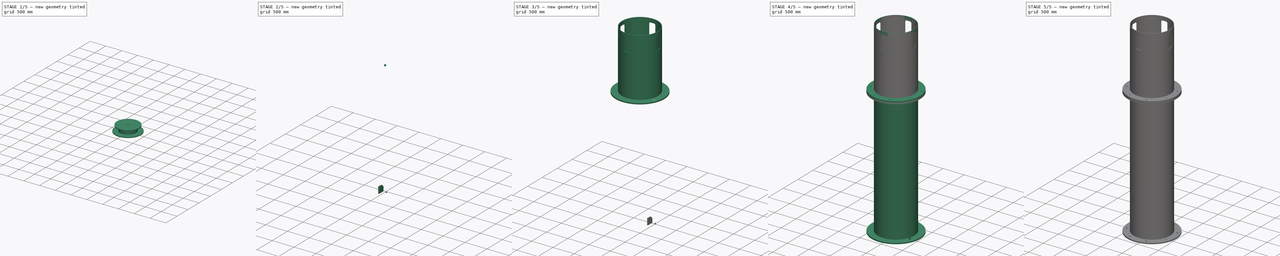
[diagram: build sequence overview — one tinted view per stage of 5, left to right]
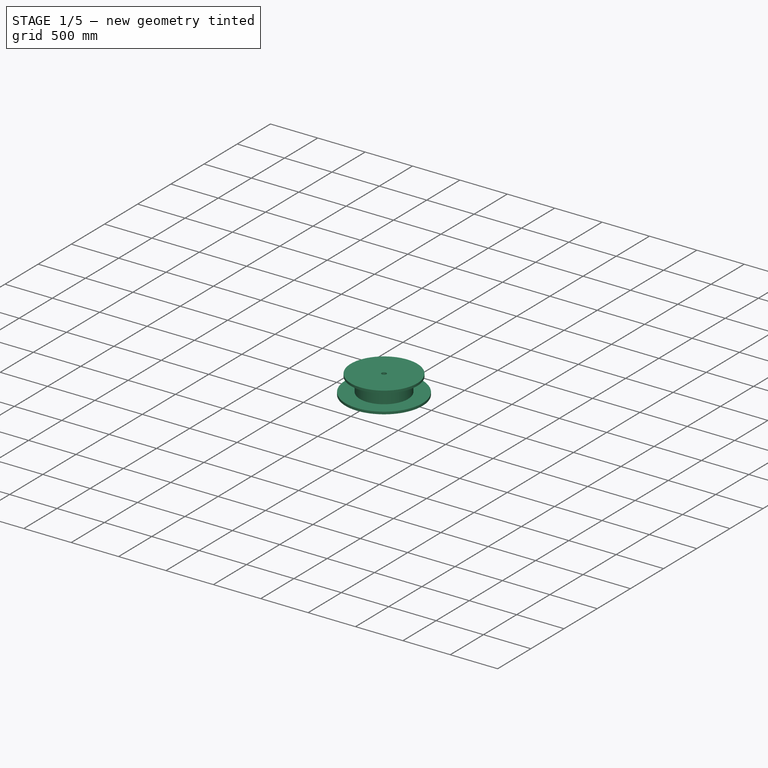
[diagram: stage 1 of 5 — iso view after this stage's code; geometry added in this stage tinted green]
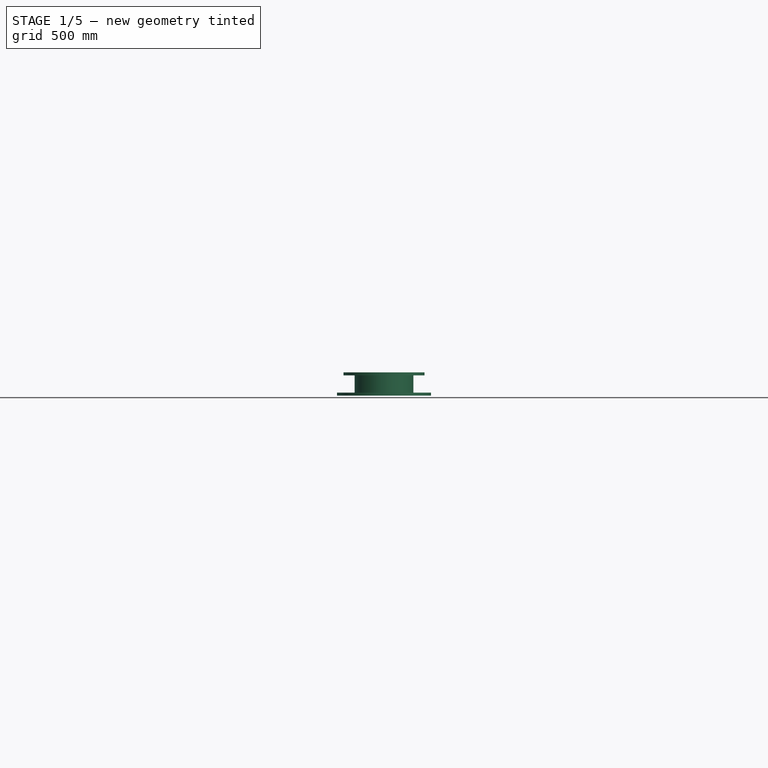
[diagram: stage 1 of 5 — front view after this stage's code; geometry added in this stage tinted green]
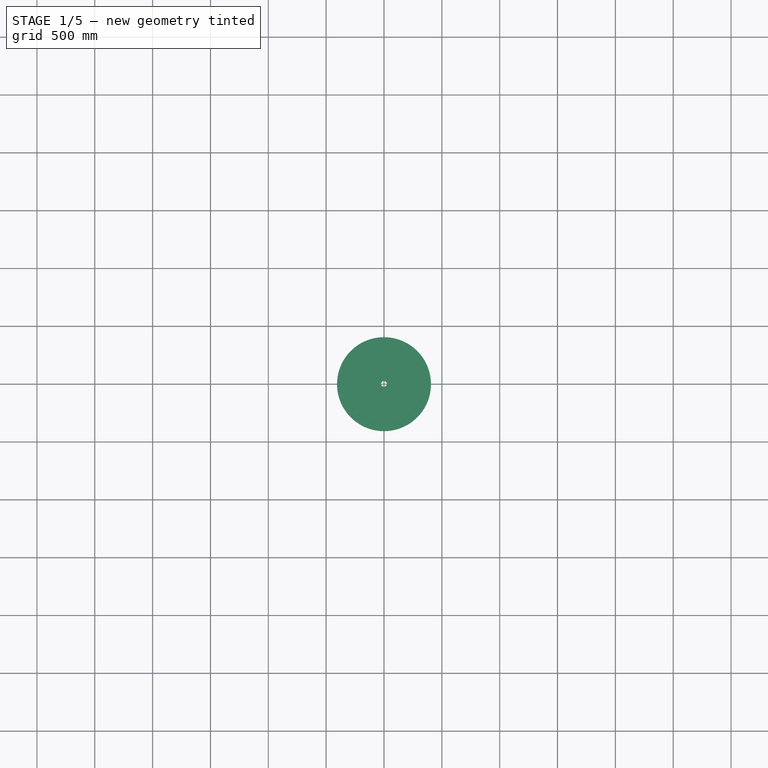
[diagram: stage 1 of 5 — top view after this stage's code; geometry added in this stage tinted green]
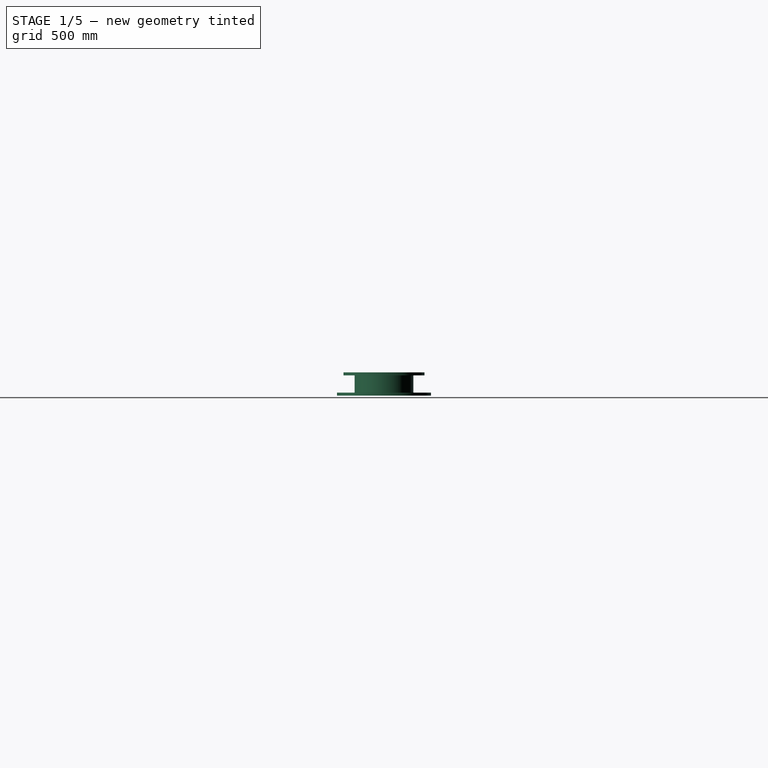
[diagram: stage 1 of 5 — right view after this stage's code; geometry added in this stage tinted green]
FCSTD DOCUMENT  (FreeCAD 1.0R39109 (Git))
Label: centerPost
License: All rights reserved
LicenseURL: https://en.wikipedia.org/wiki/All_rights_reserved
objects: Sketcher::SketchObject×11, Part::Extrusion×6, Part::Revolution×5, Part::Cut×5, Part::FeaturePython×5, App::Part×2, Spreadsheet::Sheet×1, Part::Chamfer×1
note: 39 computed .brp shape members not serialized (recipe doc carries the construction recipe); baked Part::Feature solids carry a one-line shape summary decoded from their .brp

FEATURE [Sketcher::SketchObject] Sketch005
  ArcFitTolerance = 0
  FullyConstrained = true
  MakeInternals = false
  Placement = pos=(0,0,0) rot=(1,0,0;1.5708rad)
  sketch-geometry (12):
    g0: LineSegment StartX=200 StartY=-1.8e-15 StartZ=0 EndX=406 EndY=-1.8e-15 EndZ=0
    g1: LineSegment StartX=406 StartY=-1.8e-15 StartZ=0 EndX=406 EndY=25 EndZ=0
    g2: LineSegment StartX=406 StartY=25 StartZ=0 EndX=200 EndY=25 EndZ=0
    g3: LineSegment StartX=0 StartY=175 StartZ=0 EndX=350 EndY=175 EndZ=0
    g4: LineSegment StartX=350 StartY=175 StartZ=0 EndX=350 EndY=200 EndZ=0
    g5: LineSegment StartX=350 StartY=200 StartZ=0 EndX=0 EndY=200 EndZ=0
    g6: LineSegment StartX=0 StartY=200 StartZ=0 EndX=0 EndY=175 EndZ=0
    g7: LineSegment StartX=242 StartY=25 StartZ=0 EndX=254 EndY=25 EndZ=0
    g8: LineSegment StartX=254 StartY=25 StartZ=0 EndX=254 EndY=175 EndZ=0
    g9: LineSegment StartX=254 StartY=175 StartZ=0 EndX=242 EndY=175 EndZ=0
    g10: LineSegment StartX=242 StartY=175 StartZ=0 EndX=242 EndY=25 EndZ=0
    g11: LineSegment StartX=200 StartY=25 StartZ=0 EndX=200 EndY=-3.6e-15 EndZ=0
  constraints (36):
    c: Coincident(g0,g1)
    c: Coincident(g1,g2)
    c: Horizontal(g0)
    c: Horizontal(g2)
    c: Vertical(g1)
    c: DistanceY(g1,g1) = 25
    c: DistanceX(g-1,g0) = 406
    c: Coincident(g3,g4)
    c: Coincident(g4,g5)
    c: Coincident(g5,g6)
    c: Coincident(g6,g3)
    c: Horizontal(g3)
    c: Horizontal(g5)
    c: Vertical(g4)
    c: Vertical(g6)
    c: PointOnObject(g3,g-2)
    c: DistanceY(g4,g4) = 25
    c: DistanceX(g5,g5) = 350
    c: DistanceY(g0,g4) = 200
    c: Coincident(g7,g8)
    c: Coincident(g8,g9)
    c: Coincident(g9,g10)
    c: Coincident(g10,g7)
    c: Horizontal(g7)
    c: Horizontal(g9)
    c: Vertical(g8)
    c: Vertical(g10)
    c: PointOnObject(g7,g2)
    c: PointOnObject(g8,g3)
    c: DistanceX(g9,g8) = 12
    c: Vertical(g11)
    c: Coincident(g2,g11)
    c: Coincident(g0,g11)
    c: DistanceX(g-1,g0) = 200
    c: DistanceX(g-2,g7) = 254
    c: PointOnObject(g0,g-1)
FEATURE [Part::Revolution] Revolve004
  Angle = 360
  Axis = (0,0,1)
  Base = (0,0,0)
  FaceMakerClass = Part::FaceMakerBullseye
  Solid = true
  Source = -> Sketch005
  Symmetric = false
FEATURE [Sketcher::SketchObject] Sketch007
  ArcFitTolerance = 0
  AttachmentSupport = -> [Revolve004]
  FullyConstrained = true
  MakeInternals = false
  MapMode = 5
  Placement = pos=(0,0,200) rot=(0,0,1;0rad)
  sketch-geometry (1):
    g0: Circle CenterX=0 CenterY=0 CenterZ=0 NormalX=0 NormalY=0 NormalZ=1 AngleXU=0 Radius=25
  constraints (2):
    c: Coincident(g0,g-1)
    c: Radius(g0) = 25
FEATURE [Part::Extrusion] Extrude002
  Base = -> Sketch007
  Dir = (0,0,1)
  DirMode = 2
  FaceMakerClass = Part::FaceMakerBullseye
  FaceMakerMode = 3
  LengthFwd = 25
  LengthRev = 0
  Reversed = true
  Solid = true
  Symmetric = false
FEATURE [Part::Cut] Cut001
  Base = -> Revolve004
  Tool = -> Extrude002
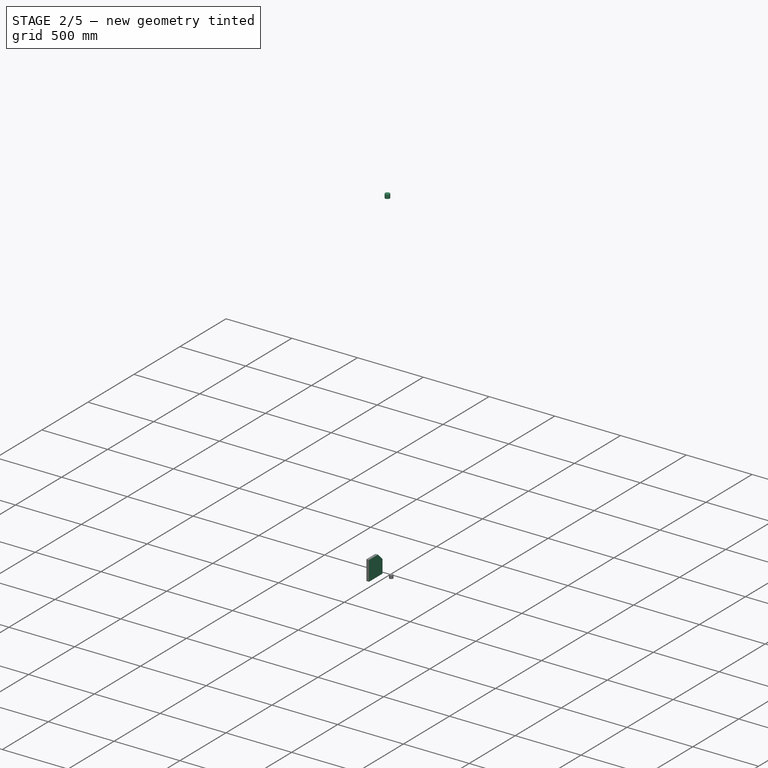
[diagram: stage 2 of 5 — iso view after this stage's code; geometry added in this stage tinted green]
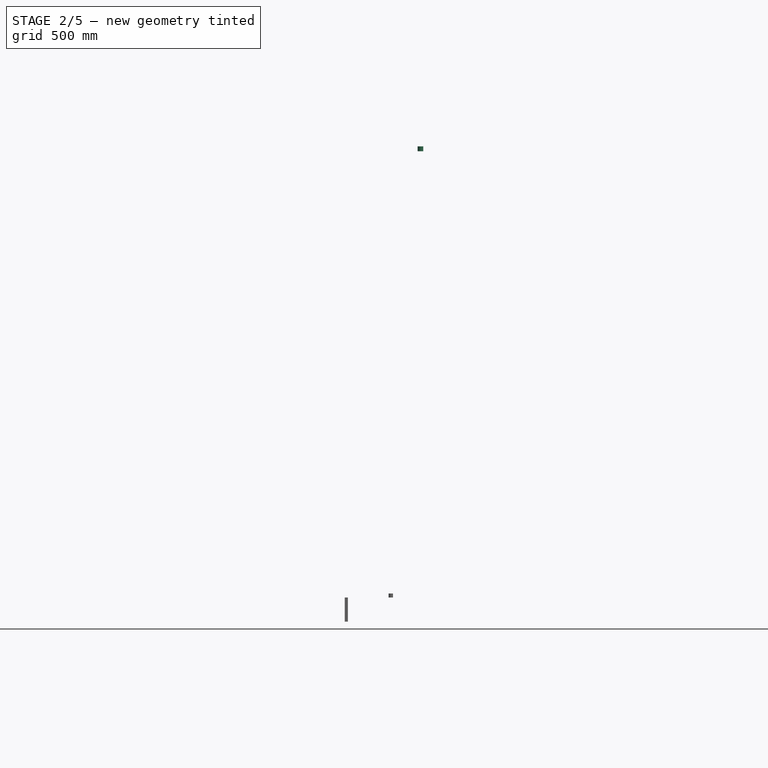
[diagram: stage 2 of 5 — front view after this stage's code; geometry added in this stage tinted green]
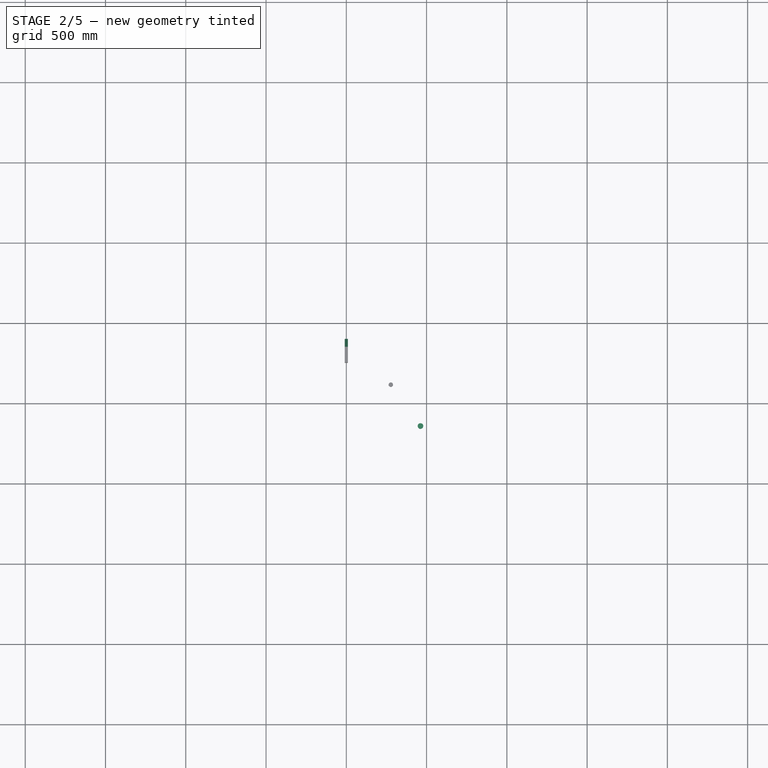
[diagram: stage 2 of 5 — top view after this stage's code; geometry added in this stage tinted green]
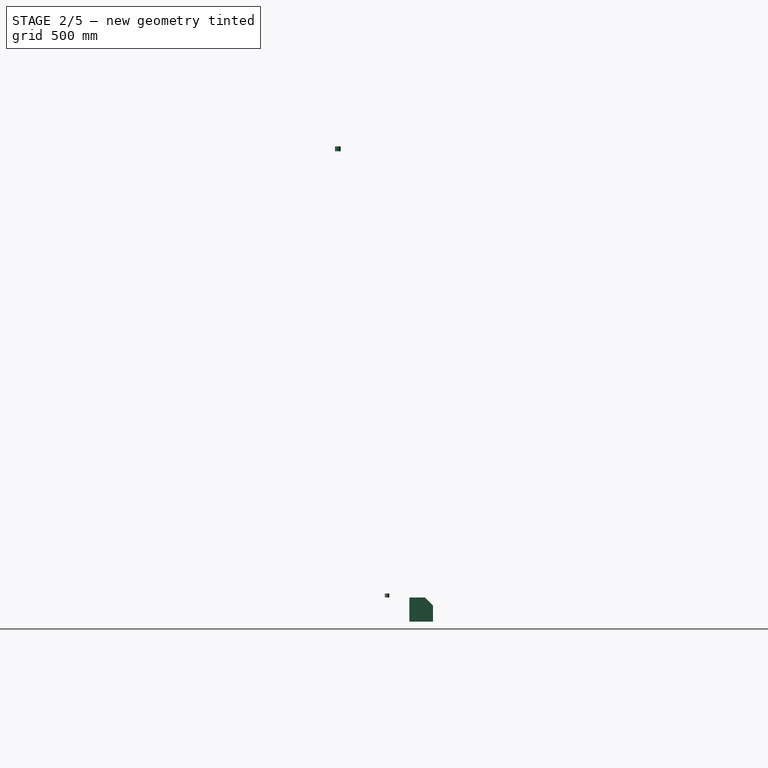
[diagram: stage 2 of 5 — right view after this stage's code; geometry added in this stage tinted green]
FEATURE [Sketcher::SketchObject] Sketch008
  ArcFitTolerance = 0
  AttachmentSupport = -> [Cut001]
  FullyConstrained = true
  MakeInternals = false
  MapMode = 5
  Placement = pos=(0,0,200) rot=(0,0,1;0rad)
  sketch-geometry (2):
    g0: Circle CenterX=277.164 CenterY=114.805 CenterZ=0 NormalX=0 NormalY=0 NormalZ=1 AngleXU=0 Radius=14
    g1: LineSegment [constr] StartX=0 StartY=0 StartZ=0 EndX=277.164 EndY=114.805 EndZ=0
  constraints (5):
    c: Coincident(g1,g-1)
    c: Coincident(g1,g0)
    c: Angle(g-1,g1) = 0.392699
    c: Distance(g1) = 300
    c: Radius(g0) = 14
FEATURE [Part::Extrusion] Extrude003
  Base = -> Sketch008
  Dir = (0,0,1)
  DirMode = 2
  FaceMakerClass = Part::FaceMakerBullseye
  FaceMakerMode = 3
  LengthFwd = 25
  LengthRev = 0
  Reversed = true
  Solid = true
  Symmetric = false
FEATURE [Sketcher::SketchObject] Sketch011
  ArcFitTolerance = 0
  AttachmentSupport = -> [Cut]
  FullyConstrained = true
  MakeInternals = false
  MapMode = 5
  Placement = pos=(0,0,2955) rot=(1,0,0;3.14159rad)
  sketch-geometry (2):
    g0: LineSegment [constr] StartX=0 StartY=0 StartZ=0 EndX=461.94 EndY=191.342 EndZ=0
    g1: Circle CenterX=461.94 CenterY=191.342 CenterZ=0 NormalX=0 NormalY=0 NormalZ=1 AngleXU=0 Radius=17.5
  constraints (5):
    c: Coincident(g0,g-1)
    c: Distance(g0) = 500
    c: Coincident(g1,g0)
    c: Radius(g1) = 17.5
    c: Angle(g-1,g0) = 0.392699
FEATURE [Part::Extrusion] Extrude005
  Base = -> Sketch011
  Dir = (0,0,-1)
  DirMode = 2
  FaceMakerClass = Part::FaceMakerBullseye
  FaceMakerMode = 3
  LengthFwd = 30
  LengthRev = 0
  Reversed = true
  Solid = true
  Symmetric = false
FEATURE [Spreadsheet::Sheet] Spreadsheet  label="Spreadsheet_centerPost"
  cells = A2='top  l1; B2(l1)=1400; A3='bottom  l2; B3(l2)=3000; A4='base l3; B4(l3)=200; A5='gasket  t0; B5(t0)=5; A6='postDia; B6(dia)=850; A7='weirHighr h0; B7(h0)=90
FEATURE [Sketcher::SketchObject] Sketch012
  ArcFitTolerance = 1e-06
  AttachmentSupport = -> [Cut001]
  ExternalGeometry = -> [Cut001]
  FullyConstrained = false
  MakeInternals = false
  MapMode = 5
  Placement = pos=(0,0,25) rot=(0,0,1;0rad)
  sketch-geometry (4):
    g0: LineSegment StartX=-10 StartY=254 StartZ=0 EndX=10 EndY=254 EndZ=0
    g1: LineSegment StartX=10 StartY=254 StartZ=0 EndX=10 EndY=401.198 EndZ=0
    g2: LineSegment StartX=10 StartY=401.198 StartZ=0 EndX=-10 EndY=401.198 EndZ=0
    g3: LineSegment StartX=-10 StartY=401.198 StartZ=0 EndX=-10 EndY=254 EndZ=0
  constraints (10):
    c: Coincident(g0,g1)
    c: Coincident(g1,g2)
    c: Coincident(g2,g3)
    c: Coincident(g3,g0)
    c: Horizontal(g2)
    c: Vertical(g1)
    c: Vertical(g3)
    c: Symmetric(g0,g0,g-2)
    c: Distance(g2,g2) = 20
    c: Tangent(g0,g-3)
FEATURE [Part::Extrusion] Extrude006
  Base = -> Sketch012
  Dir = (0,0,1)
  DirMode = 2
  FaceMakerClass = Part::FaceMakerBullseye
  FaceMakerMode = 3
  LengthFwd = 150
  LengthRev = 0
  Solid = true
  Symmetric = false
FEATURE [Part::Chamfer] Chamfer
  Base = -> Extrude006
  EdgeLinks = -> Extrude006 [Edge10]
  Edges = 1 edges r=50: [Edge10]
FEATURE [Part::FeaturePython] Array005  # Draft array (typed FeaturePython)
  AlwaysSyncPlacement = false
  Angle = 360
  ArrayType = 1
  Axis = (0,0,1)
  Base = -> Chamfer
  Center = (0,0,200)
  Count = 8
  ExpandArray = false
  Fuse = false
  IntervalAxis = (0,0,0)
  IntervalX = (50,0,0)
  IntervalY = (0,50,0)
  IntervalZ = (0,0,50)
  NumberCircles = 3
  NumberPolar = 8
  NumberX = 2
  NumberY = 2
  NumberZ = 1
  PlacementList = 8 placements: [(0,0,0),(0,0,0),(0,0,-5.68434e-14),(0,0,0),(0,0,0),(0,0,0),(0,0,0),(0,0,0)]
  RadialDistance = 50
  ScaleList = (8) [(1,1,1),(1,1,1),(1,1,1),(1,1,1),(1,1,1),(1,1,1),(1,1,1),(1,1,1)]
  Symmetry = 1
  TangentialDistance = 25
FEATURE [App::Part] Part001  label="base"
  Group = -> [Sketch005,Extrude002,Sketch012,Chamfer,Sketch007,Extrude006,Revolve004,Cut001,Array005,Array002]
  Origin = -> Origin001
  Placement = pos=(0,0,4405) rot=(0,0,1;0rad)
  expr: .Placement.Base.z = Spreadsheet.l1 + Spreadsheet.l2 + 5
FEATURE [App::Part] Part  label="centerPost001"
  Group = -> [Extrude003,Sketch008,Cut003,Cut,Cut004,Extrude004,Revolve001,Revolve002,Revolve003,Revolve,Extrude,Extrude005,Array004,Sketch011,Sketch009,Sketch010,Sketch003,Sketch,Sketch002,Sketch001,Array003,Array,Cut005,Spreadsheet,Part001]
  Origin = -> Origin
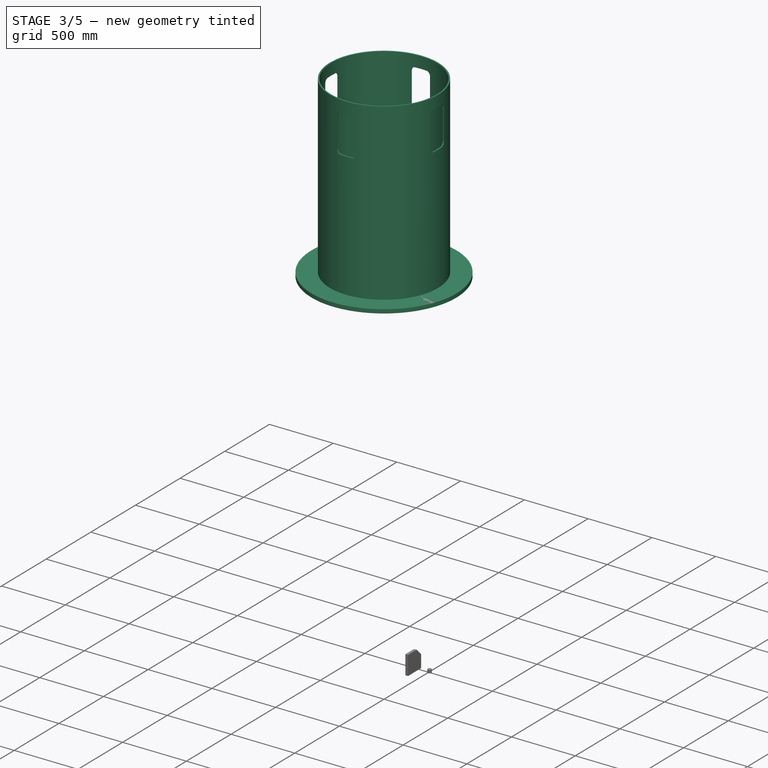
[diagram: stage 3 of 5 — iso view after this stage's code; geometry added in this stage tinted green]
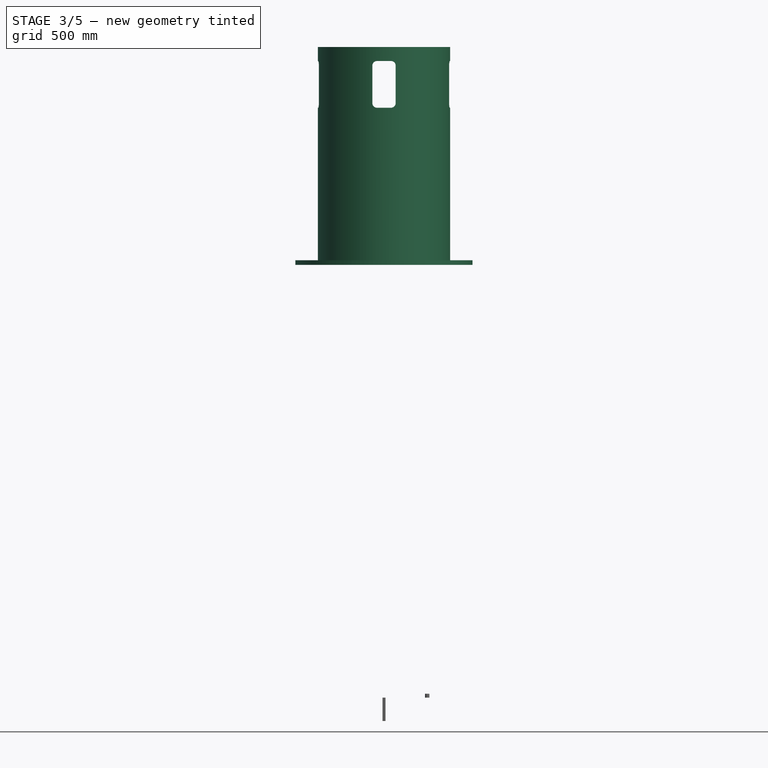
[diagram: stage 3 of 5 — front view after this stage's code; geometry added in this stage tinted green]
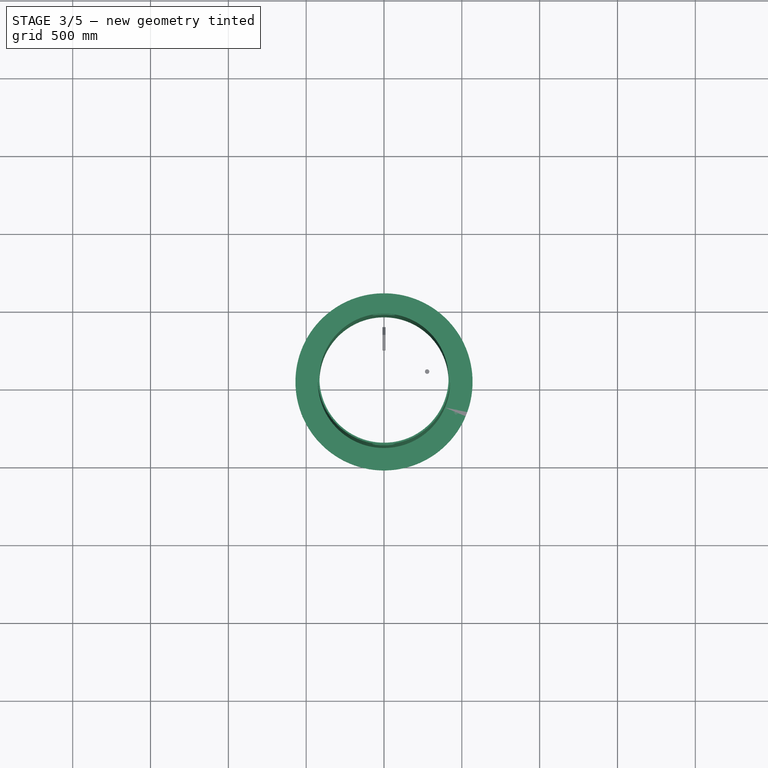
[diagram: stage 3 of 5 — top view after this stage's code; geometry added in this stage tinted green]
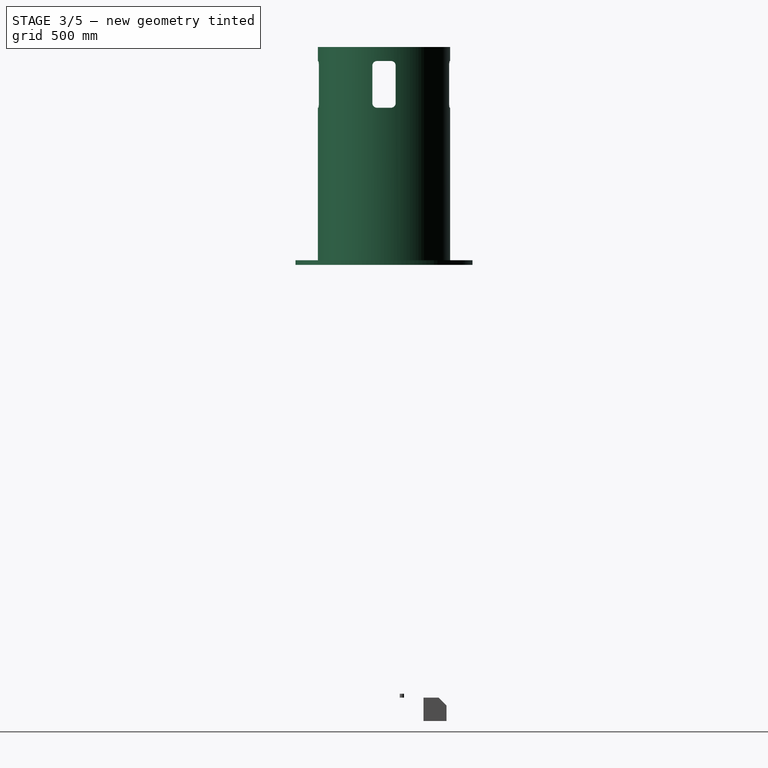
[diagram: stage 3 of 5 — right view after this stage's code; geometry added in this stage tinted green]
FEATURE [Sketcher::SketchObject] Sketch003
  ArcFitTolerance = 0
  FullyConstrained = true
  MakeInternals = false
  Placement = pos=(0,0,0) rot=(1,0,0;1.5708rad)
  expr: Constraints[12] = Spreadsheet.l1
  sketch-geometry (6):
    g0: LineSegment StartX=569 StartY=2985 StartZ=0 EndX=425 EndY=2985 EndZ=0
    g1: LineSegment StartX=425 StartY=2985 StartZ=0 EndX=425 EndY=4355 EndZ=0
    g2: LineSegment StartX=415 StartY=4355 StartZ=0 EndX=415 EndY=2955 EndZ=0
    g3: LineSegment StartX=415 StartY=2955 StartZ=0 EndX=569 EndY=2955 EndZ=0
    g4: LineSegment StartX=569 StartY=2955 StartZ=0 EndX=569 EndY=2985 EndZ=0
    g5: LineSegment StartX=425 StartY=4355 StartZ=0 EndX=415 EndY=4355 EndZ=0
  constraints (17):
    c: Coincident(g0,g1)
    c: Vertical(g1)
    c: Vertical(g2)
    c: Coincident(g2,g3)
    c: Horizontal(g3)
    c: Coincident(g3,g4)
    c: Coincident(g4,g0)
    c: Vertical(g4)
    c: DistanceY(g4,g4) = 30
    c: Coincident(g3,g-3)
    c: DistanceX(g2,g0) = 10
    c: PointOnObject(g2,g-4)
    c: DistanceY(g3,g1) = 1400
    c: Coincident(g5,g1)
    c: Horizontal(g5)
    c: Coincident(g2,g5)
    c: Horizontal(g0)
FEATURE [Part::Revolution] Revolve003  label="top"
  Angle = 360
  Axis = (0,0,1)
  Base = (0,0,0)
  FaceMakerClass = Part::FaceMakerBullseye
  Solid = true
  Source = -> Sketch003
  Symmetric = false
FEATURE [Sketcher::SketchObject] Sketch010
  ArcFitTolerance = 0
  ExternalGeometry = -> [Revolve003]
  FullyConstrained = true
  MakeInternals = false
  Placement = pos=(0,0,0) rot=(1,0,0;1.5708rad)
  expr: Constraints[19] = Spreadsheet.h0
  sketch-geometry (8):
    g0: LineSegment StartX=-45 StartY=3965 StartZ=0 EndX=45 EndY=3965 EndZ=0
    g1: LineSegment StartX=75 StartY=3995 StartZ=0 EndX=75 EndY=4235 EndZ=0
    g2: LineSegment StartX=45 StartY=4265 StartZ=0 EndX=-45 EndY=4265 EndZ=0
    g3: LineSegment StartX=-75 StartY=4235 StartZ=0 EndX=-75 EndY=3995 EndZ=0
    g4: ArcOfCircle CenterX=45 CenterY=4235 CenterZ=0 NormalX=0 NormalY=0 NormalZ=1 AngleXU=0 Radius=30 StartAngle=1.26e-14 EndAngle=1.5708
    g5: ArcOfCircle CenterX=-45 CenterY=4235 CenterZ=0 NormalX=0 NormalY=0 NormalZ=1 AngleXU=0 Radius=30 StartAngle=1.5708 EndAngle=3.14159
    g6: ArcOfCircle CenterX=-45 CenterY=3995 CenterZ=0 NormalX=0 NormalY=0 NormalZ=1 AngleXU=0 Radius=30 StartAngle=3.14159 EndAngle=4.71239
    g7: ArcOfCircle CenterX=45 CenterY=3995 CenterZ=0 NormalX=0 NormalY=0 NormalZ=1 AngleXU=0 Radius=30 StartAngle=4.71239 EndAngle=6.28319
  constraints (20):
    c: Horizontal(g0)
    c: Horizontal(g2)
    c: Vertical(g1)
    c: Vertical(g3)
    c: Tangent(g1,g4) = -1.5708
    c: Tangent(g2,g4) = -1.5708
    c: Tangent(g2,g5) = -1.5708
    c: Tangent(g3,g5) = -1.5708
    c: Tangent(g0,g6) = -1.5708
    c: Tangent(g3,g6) = -1.5708
    c: Tangent(g0,g7) = -1.5708
    c: Tangent(g1,g7) = -1.5708
    c: DistanceY(g0,g2) = 300
    c: DistanceX(g3,g1) = 150
    c: DistanceX(g-1,g1) = 75
    c: Radius(g4) = 30
    c: Equal(g4,g5)
    c: Equal(g5,g6)
    c: Equal(g6,g7)
    c: DistanceY(g2,g-3) = 90
FEATURE [Part::Extrusion] Extrude
  Base = -> Sketch010
  Dir = (0,-1,2e-16)
  DirMode = 2
  FaceMakerClass = Part::FaceMakerBullseye
  FaceMakerMode = 3
  LengthFwd = 500
  LengthRev = 0
  Solid = true
  Symmetric = false
FEATURE [Part::FeaturePython] Array  # Draft array (typed FeaturePython)
  AlwaysSyncPlacement = false
  Angle = 360
  ArrayType = 1
  Axis = (0,0,1)
  Base = -> Extrude
  Center = (0,0,0)
  Count = 4
  ExpandArray = false
  Fuse = false
  IntervalAxis = (0,0,0)
  IntervalX = (50,0,0)
  IntervalY = (0,50,0)
  IntervalZ = (0,0,50)
  NumberCircles = 3
  NumberPolar = 4
  NumberX = 2
  NumberY = 2
  NumberZ = 1
  PlacementList = 4 placements: [(0,0,0),(0,0,0),(0,0,0),(0,0,0)]
  RadialDistance = 50
  ScaleList = (4) [(1,1,1),(1,1,1),(1,1,1),(1,1,1)]
  Symmetry = 1
  TangentialDistance = 25
FEATURE [Part::Cut] Cut
  Base = -> Revolve003
  Tool = -> Array
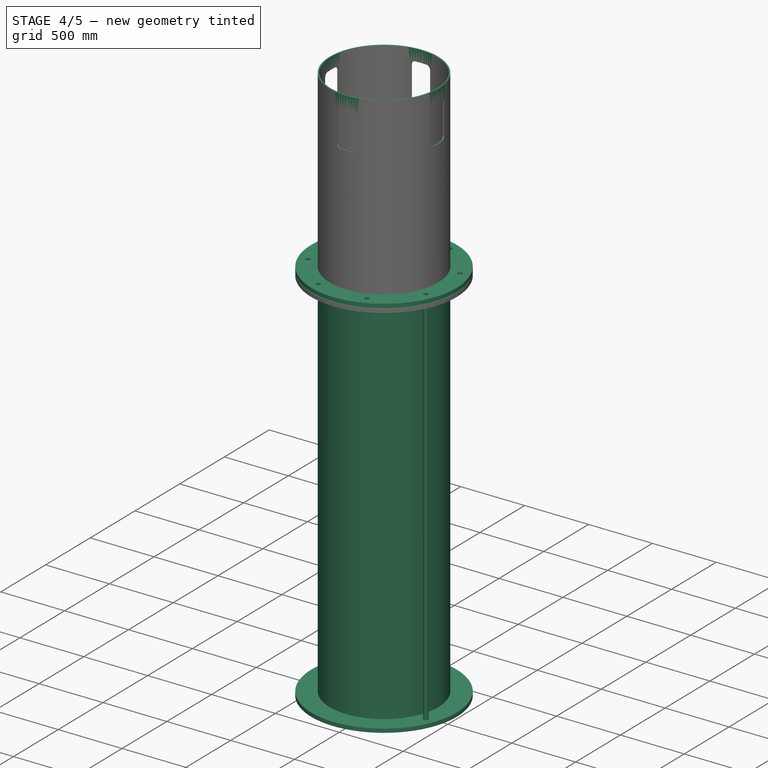
[diagram: stage 4 of 5 — iso view after this stage's code; geometry added in this stage tinted green]
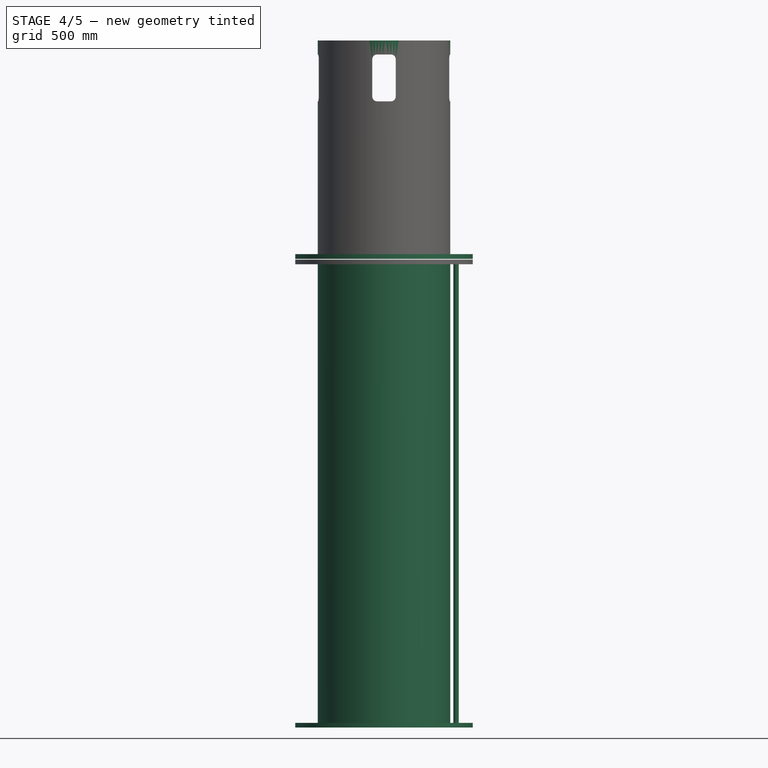
[diagram: stage 4 of 5 — front view after this stage's code; geometry added in this stage tinted green]
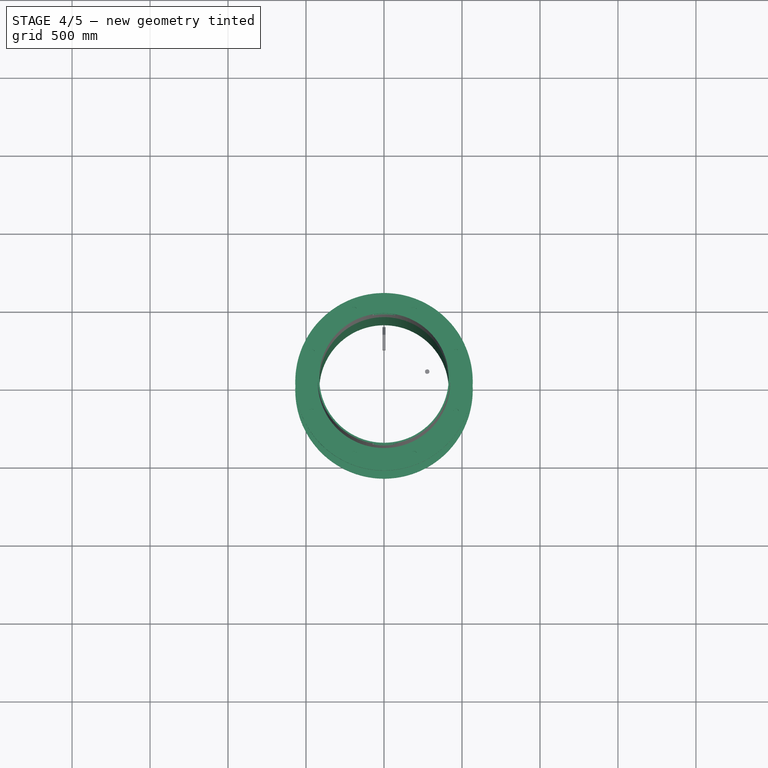
[diagram: stage 4 of 5 — top view after this stage's code; geometry added in this stage tinted green]
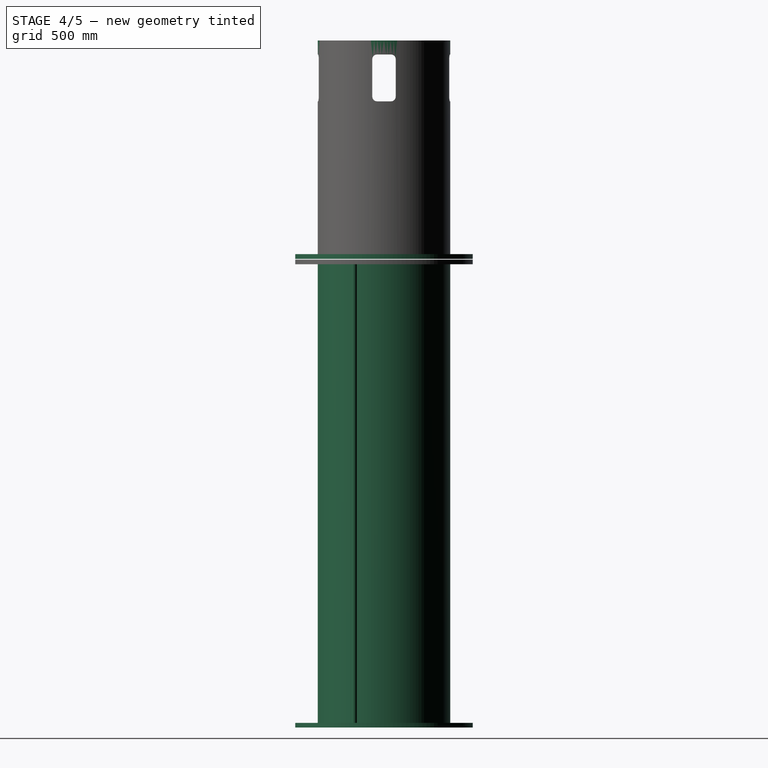
[diagram: stage 4 of 5 — right view after this stage's code; geometry added in this stage tinted green]
FEATURE [Sketcher::SketchObject] Sketch
  ArcFitTolerance = 0
  FullyConstrained = true
  MakeInternals = false
  Placement = pos=(0,0,0) rot=(1,0,0;1.5708rad)
  expr: .Constraints.r1 = Spreadsheet.dia / 2 + 144
  expr: Constraints[20] = Spreadsheet.dia / 2
  expr: Constraints[21] = .Constraints.r1
  expr: Constraints[22] = Spreadsheet.l2
  sketch-geometry (8):
    g0: LineSegment StartX=569 StartY=0 StartZ=0 EndX=569 EndY=30 EndZ=0
    g1: LineSegment StartX=569 StartY=30 StartZ=0 EndX=425 EndY=30 EndZ=0
    g2: LineSegment StartX=415 StartY=0 StartZ=0 EndX=415 EndY=3000 EndZ=0
    g3: LineSegment StartX=415 StartY=3000 StartZ=0 EndX=569 EndY=3000 EndZ=0
    g4: LineSegment StartX=569 StartY=3000 StartZ=0 EndX=569 EndY=2970 EndZ=0
    g5: LineSegment StartX=569 StartY=2970 StartZ=0 EndX=425 EndY=2970 EndZ=0
    g6: LineSegment StartX=425 StartY=2970 StartZ=0 EndX=425 EndY=30 EndZ=0
    g7: LineSegment StartX=569 StartY=0 StartZ=0 EndX=415 EndY=0 EndZ=0
  constraints (24):
    c: Vertical(g0)
    c: Coincident(g0,g1)
    c: Horizontal(g1)
    c: Vertical(g2)
    c: Coincident(g2,g3)
    c: Horizontal(g3)
    c: Coincident(g3,g4)
    c: Vertical(g4)
    c: Coincident(g4,g5)
    c: Horizontal(g5)
    c: Coincident(g5,g6)
    c: Vertical(g6)
    c: Coincident(g0,g7)
    c: Horizontal(g7)
    c: Coincident(g1,g6)
    c: DistanceX(g-1,g0) = 569  'r1'
    c: DistanceY(g0,g0) = 30
    c: PointOnObject(g0,g-1)
    c: Coincident(g2,g7)
    c: DistanceX(g2,g1) = 10
    c: DistanceX(g-1,g1) = 425
    c: DistanceX(g-2,g3) = 569
    c: DistanceY(g-1,g3) = 3000
    c: DistanceY(g4,g4) = 30
FEATURE [Part::Revolution] Revolve  label="bottom"
  Angle = 360
  Axis = (0,0,1)
  Base = (0,0,0)
  FaceMakerClass = Part::FaceMakerBullseye
  Solid = true
  Source = -> Sketch
  Symmetric = false
FEATURE [Part::FeaturePython] Array002  # Draft array (typed FeaturePython)
  AlwaysSyncPlacement = false
  Angle = 360
  ArrayType = 1
  Axis = (0,0,1)
  Base = -> Extrude003
  Center = (0,0,0)
  Count = 8
  ExpandArray = false
  Fuse = false
  IntervalAxis = (0,0,0)
  IntervalX = (50,0,0)
  IntervalY = (0,50,0)
  IntervalZ = (0,0,50)
  NumberCircles = 3
  NumberPolar = 8
  NumberX = 2
  NumberY = 2
  NumberZ = 1
  PlacementList = 8 placements: [(0,0,0),(0,0,0),(0,0,0),(0,0,0),(0,0,0),(0,0,0),(0,0,0),(0,0,0)]
  RadialDistance = 50
  ScaleList = (8) [(1,1,1),(1,1,1),(1,1,1),(1,1,1),(1,1,1),(1,1,1),(1,1,1),(1,1,1)]
  Symmetry = 1
  TangentialDistance = 25
FEATURE [Sketcher::SketchObject] Sketch009
  ArcFitTolerance = 0
  AttachmentSupport = -> [Revolve]
  FullyConstrained = true
  MakeInternals = false
  MapMode = 5
  Placement = pos=(0,0,0) rot=(1,0,0;3.14159rad)
  sketch-geometry (2):
    g0: LineSegment [constr] StartX=0 StartY=0 StartZ=0 EndX=461.94 EndY=191.342 EndZ=0
    g1: Circle CenterX=461.94 CenterY=191.342 CenterZ=0 NormalX=0 NormalY=0 NormalZ=1 AngleXU=0 Radius=17.5
  constraints (5):
    c: Coincident(g0,g-1)
    c: Coincident(g1,g0)
    c: Radius(g1) = 17.5
    c: Distance(g0) = 500
    c: Angle(g-1,g0) = 0.392699
FEATURE [Part::Extrusion] Extrude004
  Base = -> Sketch009
  Dir = (0,0,-1)
  DirMode = 2
  FaceMakerClass = Part::FaceMakerBullseye
  FaceMakerMode = 3
  LengthFwd = 3000
  LengthRev = 0
  Reversed = true
  Solid = true
  Symmetric = false
FEATURE [Part::Cut] Cut004
  Base = -> Cut
  Tool = -> Extrude005
FEATURE [Part::FeaturePython] Array004  # Draft array (typed FeaturePython)
  AlwaysSyncPlacement = false
  Angle = 360
  ArrayType = 1
  Axis = (0,0,1)
  Base = -> Extrude005
  Center = (0,0,0)
  Count = 8
  ExpandArray = false
  Fuse = false
  IntervalAxis = (0,0,0)
  IntervalX = (50,0,0)
  IntervalY = (0,50,0)
  IntervalZ = (0,0,50)
  NumberCircles = 3
  NumberPolar = 8
  NumberX = 2
  NumberY = 2
  NumberZ = 1
  PlacementList = 8 placements: [(0,0,0),(0,0,0),(0,0,0),(0,0,0),(0,0,0),(0,0,0),(0,0,0),(0,0,0)]
  RadialDistance = 50
  ScaleList = (8) [(1,1,1),(1,1,1),(1,1,1),(1,1,1),(1,1,1),(1,1,1),(1,1,1),(1,1,1)]
  Symmetry = 1
  TangentialDistance = 25
FEATURE [Part::Cut] Cut005  label="top001"
  Base = -> Cut004
  Placement = pos=(0,0,50) rot=(0,0,1;0rad)
  Tool = -> Array004
  expr: .Placement.Base.z = Spreadsheet.l2 - 2950
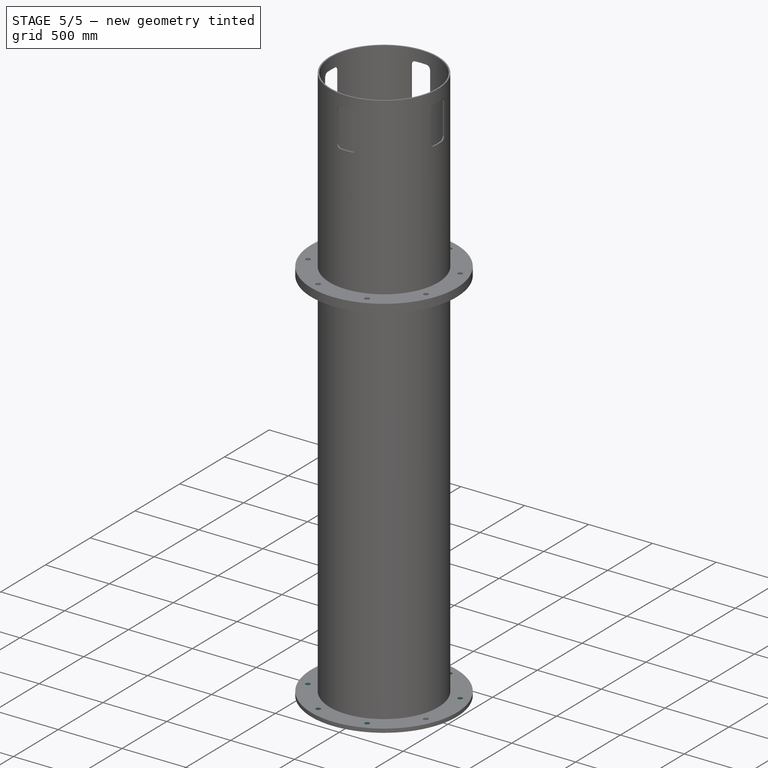
[diagram: stage 5 of 5 — iso view after this stage's code; geometry added in this stage tinted green]
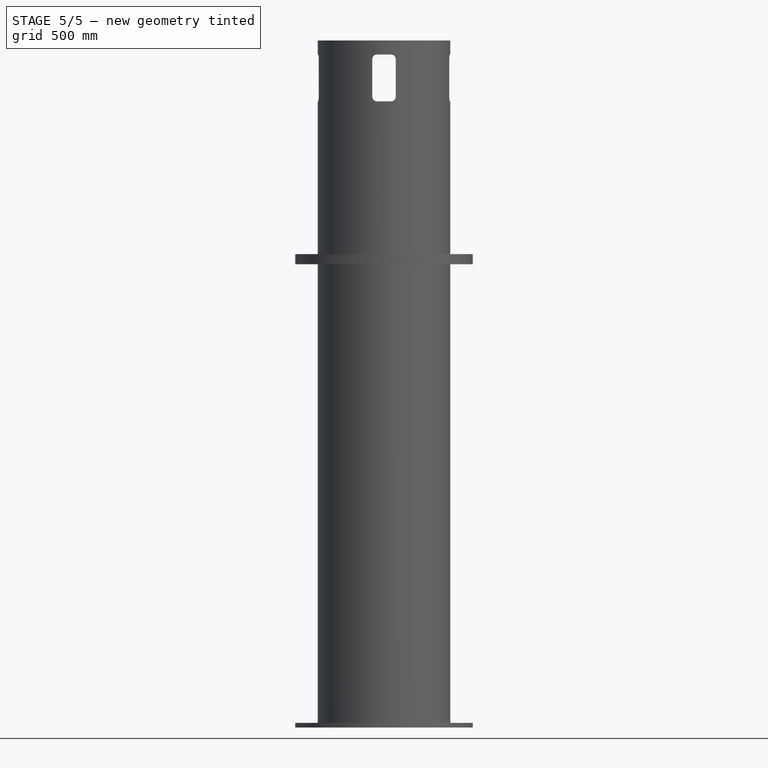
[diagram: stage 5 of 5 — front view after this stage's code; geometry added in this stage tinted green]
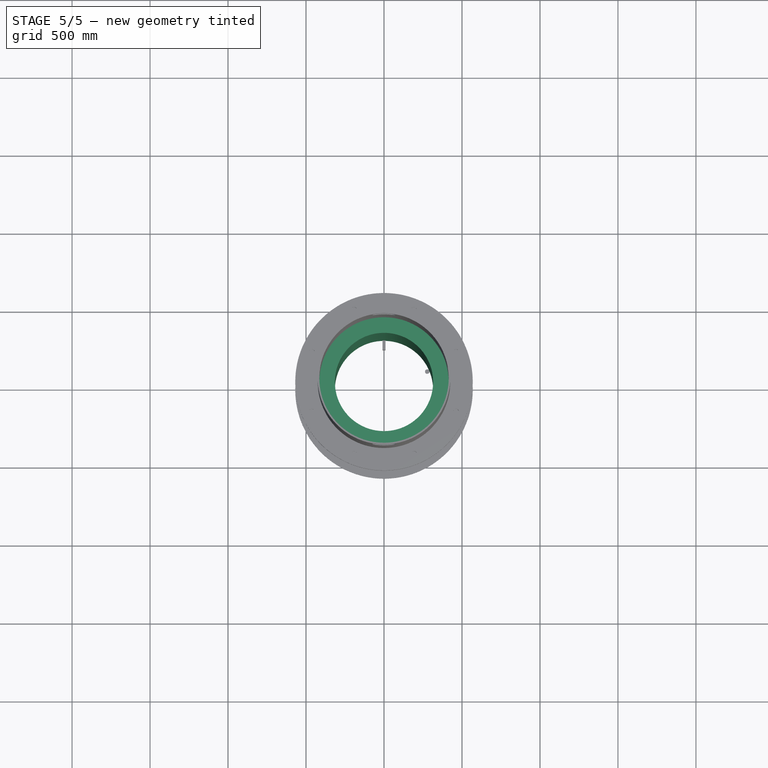
[diagram: stage 5 of 5 — top view after this stage's code; geometry added in this stage tinted green]
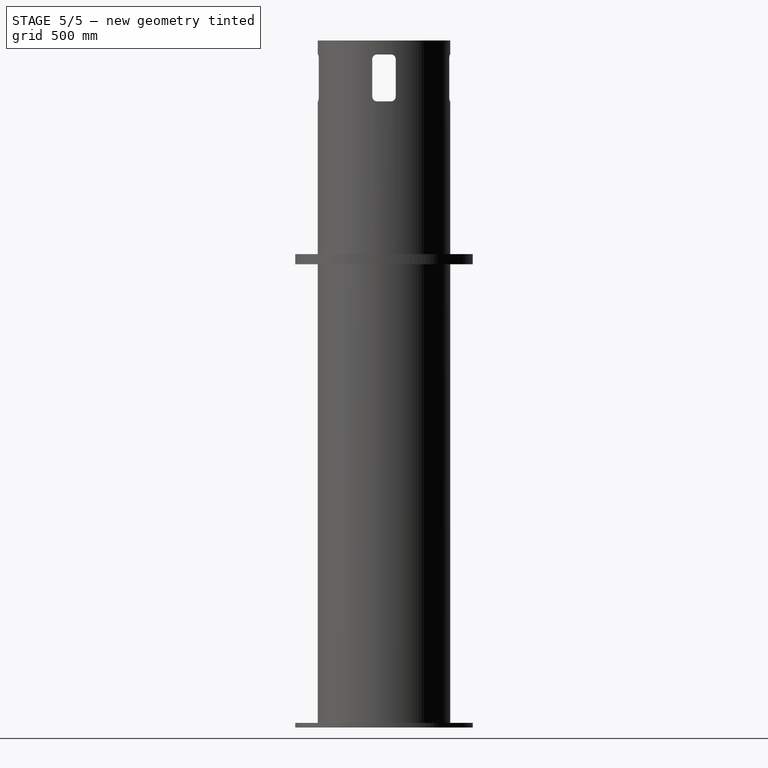
[diagram: stage 5 of 5 — right view after this stage's code; geometry added in this stage tinted green]
FEATURE [Sketcher::SketchObject] Sketch001
  ArcFitTolerance = 0
  FullyConstrained = true
  MakeInternals = false
  Placement = pos=(0,0,0) rot=(1,0,0;1.5708rad)
  sketch-geometry (4):
    g0: LineSegment StartX=315 StartY=0 StartZ=0 EndX=415 EndY=0 EndZ=0
    g1: LineSegment StartX=415 StartY=0 StartZ=0 EndX=415 EndY=2950 EndZ=0
    g2: LineSegment StartX=415 StartY=2950 StartZ=0 EndX=315 EndY=2950 EndZ=0
    g3: LineSegment StartX=315 StartY=2950 StartZ=0 EndX=315 EndY=0 EndZ=0
  constraints (11):
    c: Coincident(g0,g1)
    c: Coincident(g1,g2)
    c: Coincident(g2,g3)
    c: Coincident(g3,g0)
    c: Horizontal(g0)
    c: Horizontal(g2)
    c: Vertical(g1)
    c: Vertical(g3)
    c: Distance(g0) = 100
    c: Coincident(g0,g-3)
    c: PointOnObject(g2,g-4)
FEATURE [Part::Revolution] Revolve001  label="covering"
  Angle = 360
  Axis = (0,0,1)
  Base = (0,0,0)
  FaceMakerClass = Part::FaceMakerBullseye
  Solid = true
  Source = -> Sketch001
  Symmetric = false
FEATURE [Sketcher::SketchObject] Sketch002
  ArcFitTolerance = 0
  FullyConstrained = true
  MakeInternals = false
  Placement = pos=(0,0,0) rot=(1,0,0;1.5708rad)
  expr: Constraints[8] = Spreadsheet.t0
  expr: Constraints[9] = Spreadsheet.l2
  sketch-geometry (4):
    g0: LineSegment StartX=415 StartY=3000 StartZ=0 EndX=569 EndY=3000 EndZ=0
    g1: LineSegment StartX=569 StartY=3000 StartZ=0 EndX=569 EndY=3005 EndZ=0
    g2: LineSegment StartX=569 StartY=3005 StartZ=0 EndX=415 EndY=3005 EndZ=0
    g3: LineSegment StartX=415 StartY=3005 StartZ=0 EndX=415 EndY=3000 EndZ=0
  constraints (12):
    c: Coincident(g0,g1)
    c: Coincident(g1,g2)
    c: Coincident(g2,g3)
    c: Coincident(g3,g0)
    c: Horizontal(g0)
    c: Horizontal(g2)
    c: Vertical(g1)
    c: Vertical(g3)
    c: DistanceY(g1,g1) = 5
    c: DistanceY(g-1,g0) = 3000
    c: PointOnObject(g0,g-3)
    c: PointOnObject(g-4,g1)
FEATURE [Part::Revolution] Revolve002  label="gasket"
  Angle = 360
  Axis = (0,0,1)
  Base = (0,0,0)
  FaceMakerClass = Part::FaceMakerBullseye
  Placement = pos=(0,0,1.3656e-08) rot=(0,0,1;0rad)
  Solid = true
  Source = -> Sketch002
  Symmetric = false
FEATURE [Part::FeaturePython] Array003  # Draft array (typed FeaturePython)
  AlwaysSyncPlacement = false
  Angle = 360
  ArrayType = 1
  Axis = (0,0,1)
  Base = -> Extrude004
  Center = (0,0,0)
  Count = 8
  ExpandArray = false
  Fuse = false
  IntervalAxis = (0,0,0)
  IntervalX = (50,0,0)
  IntervalY = (0,50,0)
  IntervalZ = (0,0,50)
  NumberCircles = 3
  NumberPolar = 8
  NumberX = 2
  NumberY = 2
  NumberZ = 1
  PlacementList = 8 placements: [(0,0,0),(0,0,0),(0,0,0),(0,0,0),(0,0,0),(0,0,0),(0,0,0),(0,0,0)]
  RadialDistance = 50
  ScaleList = (8) [(1,1,1),(1,1,1),(1,1,1),(1,1,1),(1,1,1),(1,1,1),(1,1,1),(1,1,1)]
  Symmetry = 1
  TangentialDistance = 25
FEATURE [Part::Cut] Cut003  label="bottom001"
  Base = -> Revolve
  Tool = -> Array003
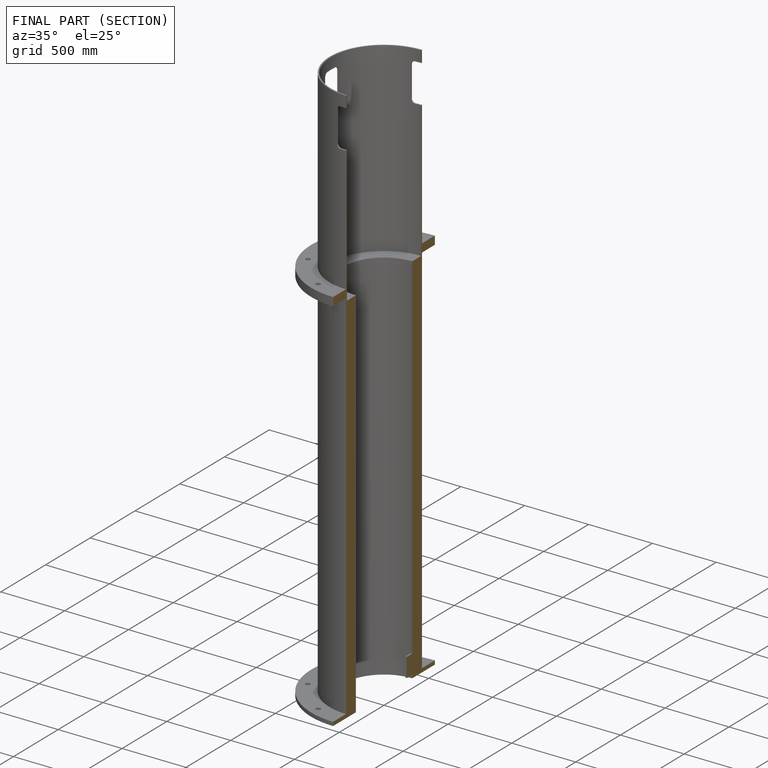
[diagram: finished part — half-section view (interior)]
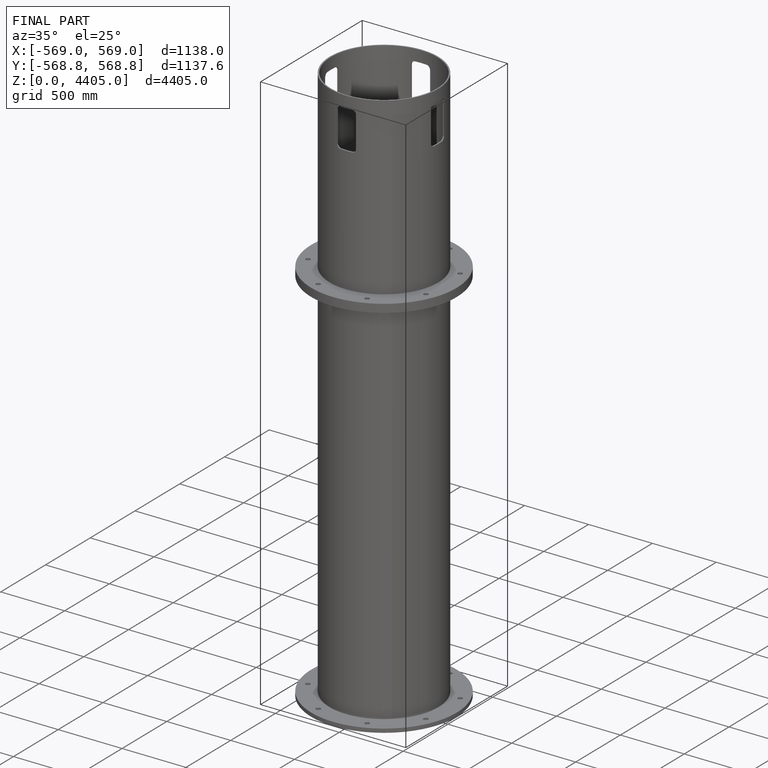
[diagram: finished part — iso view with bounding-box wireframe]
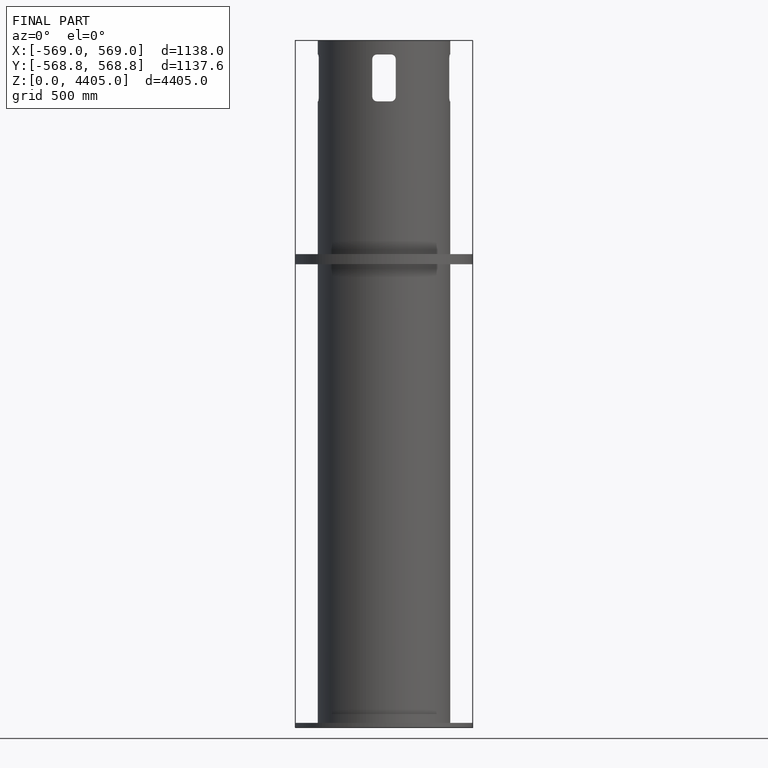
[diagram: finished part — front view with bounding-box wireframe]
